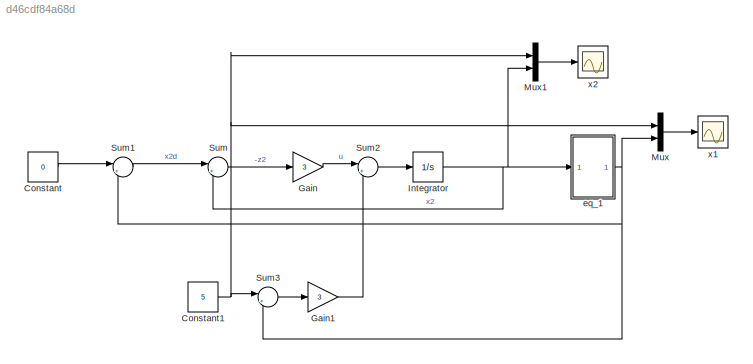
MODEL slx_d46cdf84a68d
KIND model
CONFIG AbsTol = auto
CONFIG FixedStep = auto
CONFIG MaxStep = auto
CONFIG MinStep = auto
CONFIG RelTol = 1e-3
CONFIG SampleTimeConstraint = Unconstrained
CONFIG Solver = ode45
CONFIG SolverMode = Auto
CONFIG SolverName = ode45
CONFIG StartTime = 0.0
CONFIG StopTime = 10
BLOCK [Constant] Constant
  Value = 0
BLOCK [Constant] Constant1
  Value = 5
BLOCK [Gain] Gain
  Gain = 3
  OutDataTypeStr = Inherit: Inherit via internal rule
  ParamDataTypeStr = Inherit: Inherit via internal rule
  SaturateOnIntegerOverflow = off
BLOCK [Gain] Gain1
  Gain = 3
  OutDataTypeStr = Inherit: Inherit via internal rule
  ParamDataTypeStr = Inherit: Inherit via internal rule
  SaturateOnIntegerOverflow = off
BLOCK [Integrator] Integrator
  InitialCondition = 1
  Ports = [1, 1]
BLOCK [Mux] Mux
  DisplayOption = bar
  Inputs = 2
  Ports = [2, 1]
BLOCK [Mux] Mux1
  DisplayOption = bar
  Inputs = 2
  Ports = [2, 1]
BLOCK [Sum] Sum
  IconShape = round
  InputSameDT = off
  Inputs = |+-
  OutDataTypeStr = Inherit: Inherit via internal rule
  Ports = [2, 1]
  SaturateOnIntegerOverflow = off
BLOCK [Sum] Sum1
  IconShape = round
  InputSameDT = off
  Inputs = |+-
  OutDataTypeStr = Inherit: Inherit via internal rule
  Ports = [2, 1]
  SaturateOnIntegerOverflow = off
BLOCK [Sum] Sum2
  IconShape = round
  InputSameDT = off
  Inputs = |++
  OutDataTypeStr = Inherit: Inherit via internal rule
  Ports = [2, 1]
  SaturateOnIntegerOverflow = off
BLOCK [Sum] Sum3
  IconShape = round
  InputSameDT = off
  Inputs = |+-
  OutDataTypeStr = Inherit: Inherit via internal rule
  Ports = [2, 1]
  SaturateOnIntegerOverflow = off
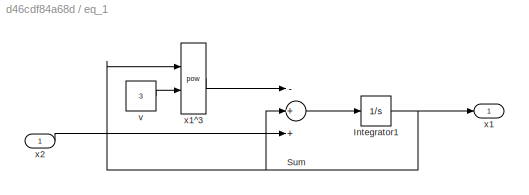
BLOCK [SubSystem] eq_1
  Ports = [1, 1]
  RequestExecContextInheritance = off
BLOCK [Integrator] eq_1/Integrator1
  InitialCondition = 1
  Ports = [1, 1]
BLOCK [Sum] eq_1/Sum
  InputSameDT = off
  Inputs = -++
  OutDataTypeStr = Inherit: Inherit via internal rule
  Ports = [3, 1]
  SaturateOnIntegerOverflow = off
BLOCK [Constant] eq_1/v
  Value = 3
BLOCK [Outport] eq_1/x1
  IconDisplay = Port number
BLOCK [Math] eq_1/x1^3
  Operator = pow
  Ports = [2, 1]
BLOCK [Inport] eq_1/x2
  IconDisplay = Port number
BLOCK [Scope] x1
  Floating = off
  NumInputPorts = 1
  Ports = [1]
  SaveName = ScopeData1
BLOCK [Scope] x2
  Floating = off
  NumInputPorts = 1
  Ports = [1]
NET Constant1:1 -> Mux1:1, Mux:1, Sum3:1
LINE Constant:1 -> Sum1:1
LINE Gain1:1 -> Sum2:2
LINE Gain:1 -> Sum2:1
NET Integrator:1 -> Mux1:2, Sum:2, eq_1:1
LINE Mux1:1 -> x2:1
LINE Mux:1 -> x1:1
LINE Sum1:1 -> Sum:1
LINE Sum2:1 -> Integrator:1
LINE Sum3:1 -> Gain1:1
LINE Sum:1 -> Gain:1
NET eq_1/Integrator1:1 -> eq_1/Sum:2, eq_1/x1:1, eq_1/x1^3:1
LINE eq_1/Sum:1 -> eq_1/Integrator1:1
LINE eq_1/v:1 -> eq_1/x1^3:2
LINE eq_1/x1^3:1 -> eq_1/Sum:1
LINE eq_1/x2:1 -> eq_1/Sum:3
NET eq_1:1 -> Mux:2, Sum1:2, Sum3:2
note: NET lines group one-source signal fan-out (src -> all destinations, sorted); 1:1 wires keep LINE
